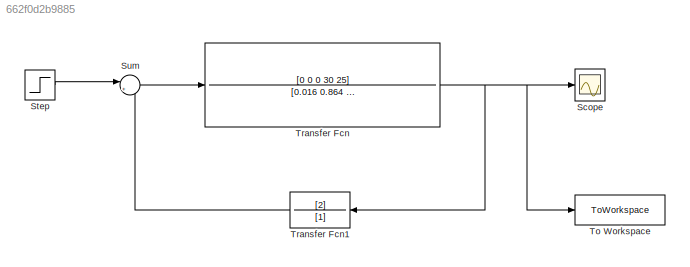
MODEL slx_662f0d2b9885
KIND model
CONFIG AbsTol = auto
CONFIG EnableMultiTasking = off
CONFIG FixedStep = auto
CONFIG MaxStep = auto
CONFIG MinStep = auto
CONFIG RelTol = 1e-3
CONFIG SampleTimeConstraint = Unconstrained
CONFIG Solver = VariableStepAuto
CONFIG SolverName = VariableStepAuto
CONFIG StartTime = 0.0
CONFIG StopTime = 10.01
BLOCK [Scope] Scope
  Floating = off
  NumInputPorts = 1
  Ports = [1]
  ScopeSpecificationString = Simulink.scopes.TimeScopeBlockCfg('CurrentConfiguration', extmgr.ConfigurationSet(extmgr.Configuration('Core','General UI',true),extmgr.Configuration('Core','Source UI',true),extmgr.Configuration('Sources','WiredSimulink',true),extmgr.Configuration('Visuals','Time Domain',true,'SerializedDisplays',{struct('MinYLimReal','-2.11219','MaxYLimReal','19.00972','YLabelReal','','MinYLimMag','0.00000','Max...<+1336ch>
BLOCK [Step] Step
  After = 20
  SampleTime = 0
  Time = 0
BLOCK [Sum] Sum
  Inputs = |+-
  Ports = [2, 1]
BLOCK [ToWorkspace] To Workspace
  FixptAsFi = on
  MaxDataPoints = inf
  Ports = [1]
  SampleTime = 0.01
  Save2DSignal = 2-D array (concatenate along first dimension)
  VariableName = step_1
BLOCK [TransferFcn] Transfer Fcn
  Denominator = [0.016 0.864 3.27 3.42 1]
  Numerator = [0 0 0 30 25]
BLOCK [TransferFcn] Transfer Fcn1
  Denominator = [1]
  Numerator = [2]
LINE Step:1 -> Sum:1
LINE Sum:1 -> Transfer Fcn:1
LINE Transfer Fcn1:1 -> Sum:2
NET Transfer Fcn:1 -> Scope:1, To Workspace:1, Transfer Fcn1:1
note: NET lines group one-source signal fan-out (src -> all destinations, sorted); 1:1 wires keep LINE
